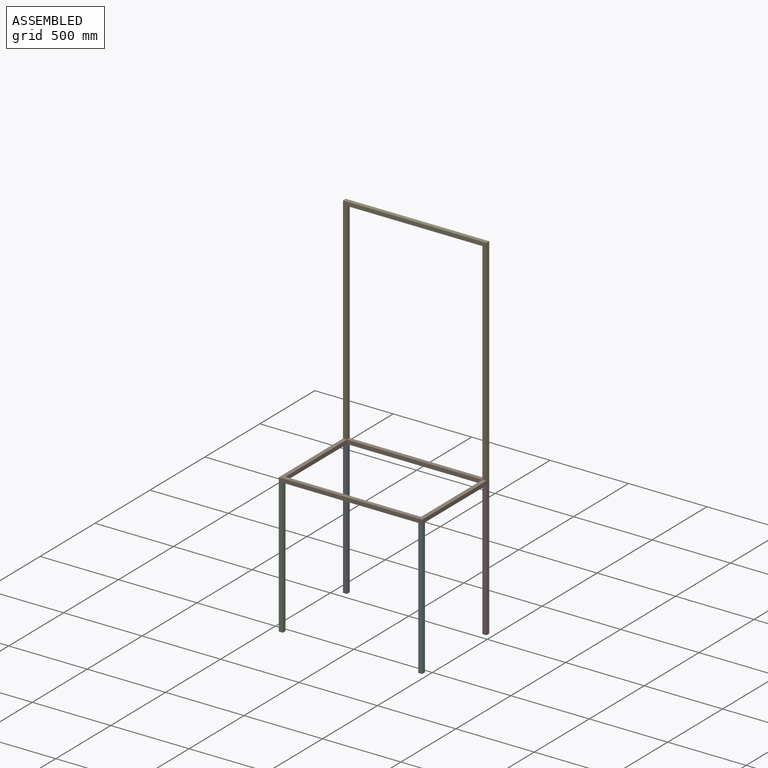
[diagram: assembled view]
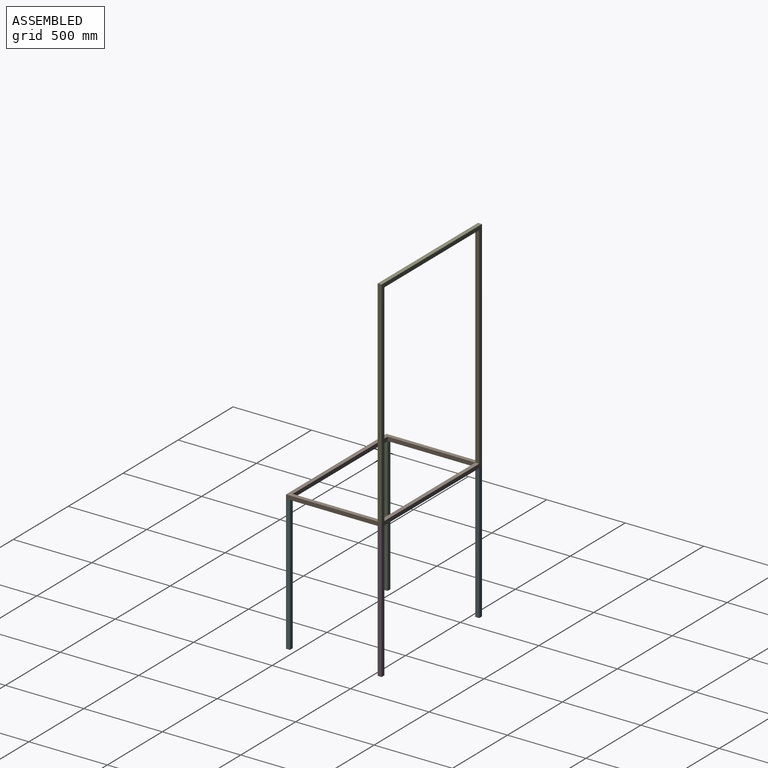
[diagram: assembled view, second angle]
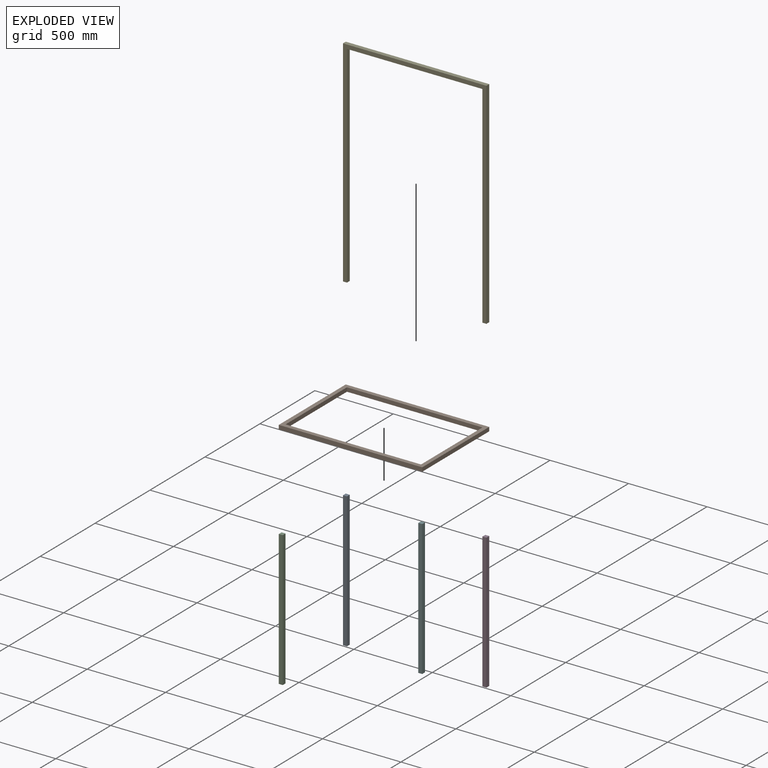
[diagram: exploded view]
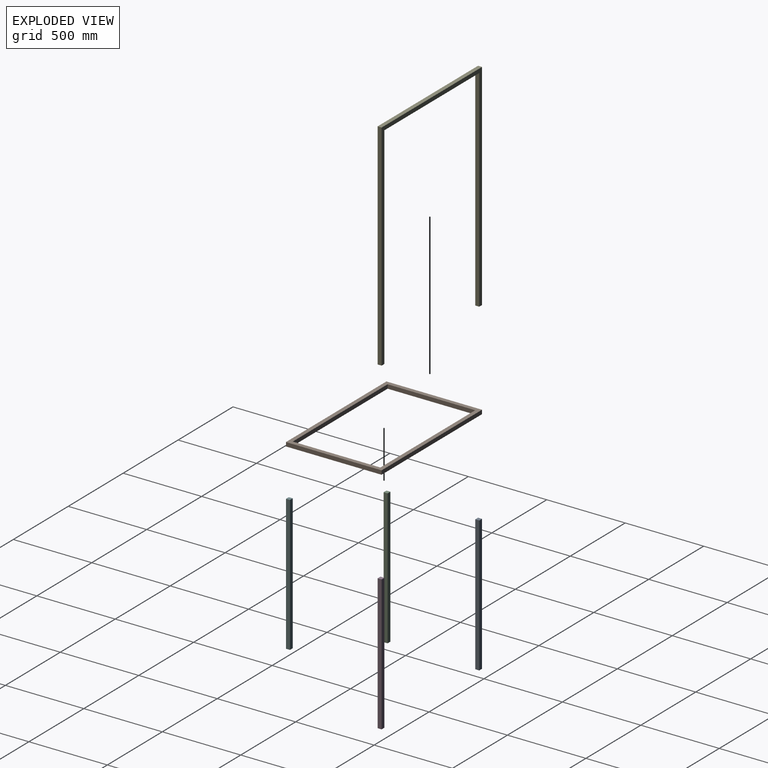
[diagram: exploded view, second angle]
ASSEMBLY  parts=6 mates=5
PART A: 6 faces, bbox 25.4x25.4x863.6 mm
  f0: plane 25.4x25.4mm, normal (0,0,1), area 645.2mm2, adj f1,f3,f4,f5
  f1: plane 863.6x25.4mm, normal (-1,0,0), area 21935.4mm2, adj f0,f2,f4,f5
  f2: plane 25.4x25.4mm, normal (0,0,-1), area 645.2mm2, adj f1,f3,f4,f5
  f3: plane 863.6x25.4mm, normal (1,0,0), area 21935.4mm2, adj f0,f2,f4,f5
  f4: plane 863.6x25.4mm, normal (0,-1,0), area 21935.4mm2, adj f0,f1,f2,f3
  f5: plane 863.6x25.4mm, normal (0,1,0), area 21935.4mm2, adj f0,f1,f2,f3
PART B: 10 faces, bbox 914.4x609.6x25.4 mm
  f0: plane 914.4x25.4mm, normal (0,1,0), area 23225.8mm2, adj f1,f7,f8,f9
  f1: plane 609.6x25.4mm, normal (-1,0,0), area 15483.8mm2, adj f0,f2,f8,f9
  f2: plane 914.4x25.4mm, normal (0,-1,0), area 23225.8mm2, adj f1,f7,f8,f9
  f3: plane 863.6x25.4mm, normal (0,-1,0), area 21935.4mm2, adj f4,f6,f8,f9
  f4: plane 558.8x25.4mm, normal (-1,0,0), area 14193.5mm2, adj f3,f5,f8,f9
  f5: plane 863.6x25.4mm, normal (0,1,0), area 21935.4mm2, adj f4,f6,f8,f9
  f6: plane 558.8x25.4mm, normal (1,0,0), area 14193.5mm2, adj f3,f5,f8,f9
  f7: plane 609.6x25.4mm, normal (1,0,0), area 15483.8mm2, adj f0,f2,f8,f9
  f8: plane 914.4x609.6mm, normal (0,0,1), area 74838.6mm2, adj f0,f1,f2,f3,f4,f5,f6,f7
  f9: plane 914.4x609.6mm, normal (0,0,-1), area 74838.6mm2, adj f0,f1,f2,f3,f4,f5,f6,f7
PART C: same geometry as A
PART D: same geometry as A
PART E: 10 faces, bbox 914.4x25.4x1371.6 mm
  f0: plane 25.4x25.4mm, normal (0,0,-1), area 645.2mm2, adj f1,f7,f8,f9
  f1: plane 1346.2x25.4mm, normal (1,0,0), area 34193.5mm2, adj f0,f2,f8,f9
  f2: plane 863.6x25.4mm, normal (0,0,-1), area 21935.4mm2, adj f1,f3,f8,f9
  f3: plane 1346.2x25.4mm, normal (-1,0,0), area 34193.5mm2, adj f2,f4,f8,f9
  f4: plane 25.4x25.4mm, normal (0,0,-1), area 645.2mm2, adj f3,f5,f8,f9
  f5: plane 1371.6x25.4mm, normal (1,0,0), area 34838.6mm2, adj f4,f6,f8,f9
  f6: plane 914.4x25.4mm, normal (0,0,1), area 23225.8mm2, adj f5,f7,f8,f9
  f7: plane 1371.6x25.4mm, normal (-1,0,0), area 34838.6mm2, adj f0,f6,f8,f9
  f8: plane 1371.6x914.4mm, normal (0,-1,0), area 91612.7mm2, adj f0,f1,f2,f3,f4,f5,f6,f7
  f9: plane 1371.6x914.4mm, normal (0,1,0), area 91612.7mm2, adj f0,f1,f2,f3,f4,f5,f6,f7
PART F: same geometry as A
PLACE A t=(-29.16,-32.27,254.12)mm
PLACE B t=(-29.16,-32.27,254.12)mm
PLACE C t=(-29.16,-616.47,254.12)mm
PLACE D t=(859.84,-32.27,254.12)mm
PLACE E t=(-29.16,-32.27,279.52)mm
PLACE F t=(859.84,-616.47,254.12)mm
MATE fastened C.f0 <-> B.f9  axis (0,0,1) through (-29.16,-641.87,254.12)mm
MATE fastened D.f0 <-> B.f9  axis (0,0,1) through (885.24,-32.27,254.12)mm
MATE fastened F.f0 <-> B.f9  axis (0,0,1) through (885.24,-641.87,254.12)mm
MATE fastened A.f0 <-> B.f9  axis (0,0,1) through (-29.16,-32.27,254.12)mm
MATE fastened E.f0 <-> B.f8  axis (0,0,-1) through (-29.16,-32.27,279.52)mm
